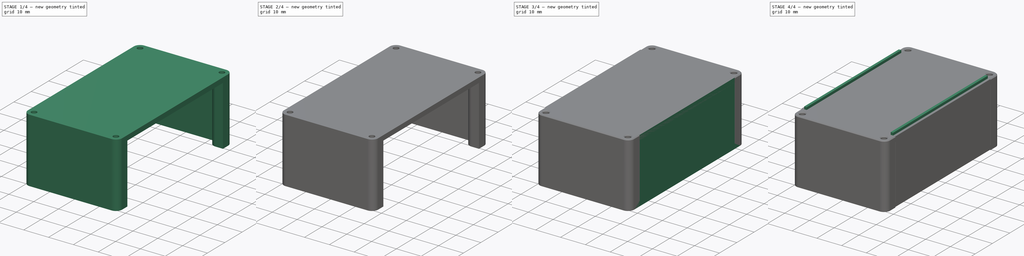
[diagram: build sequence overview — one tinted view per stage of 4, left to right]
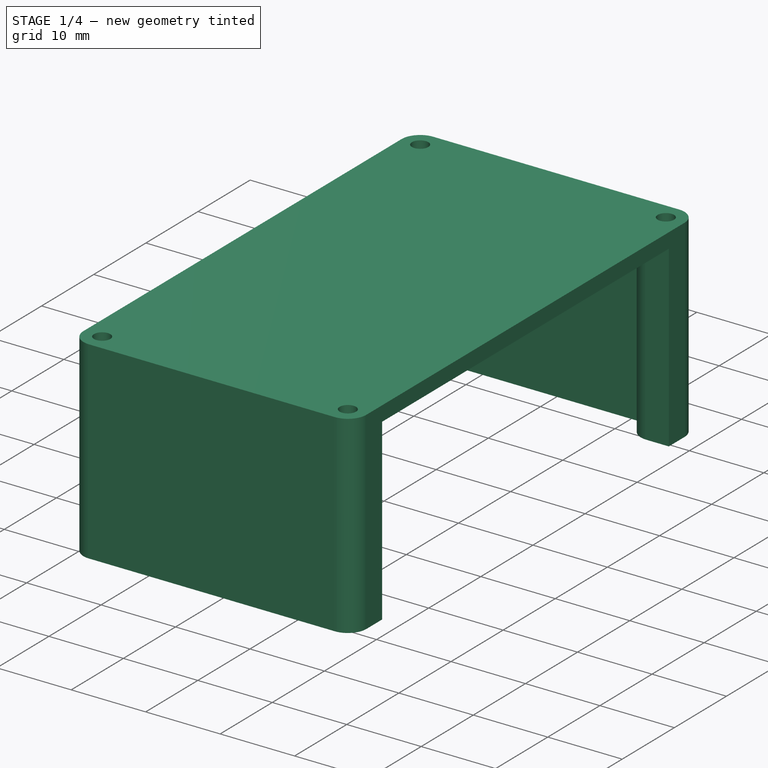
[diagram: stage 1 of 4 — iso view after this stage's code; geometry added in this stage tinted green]
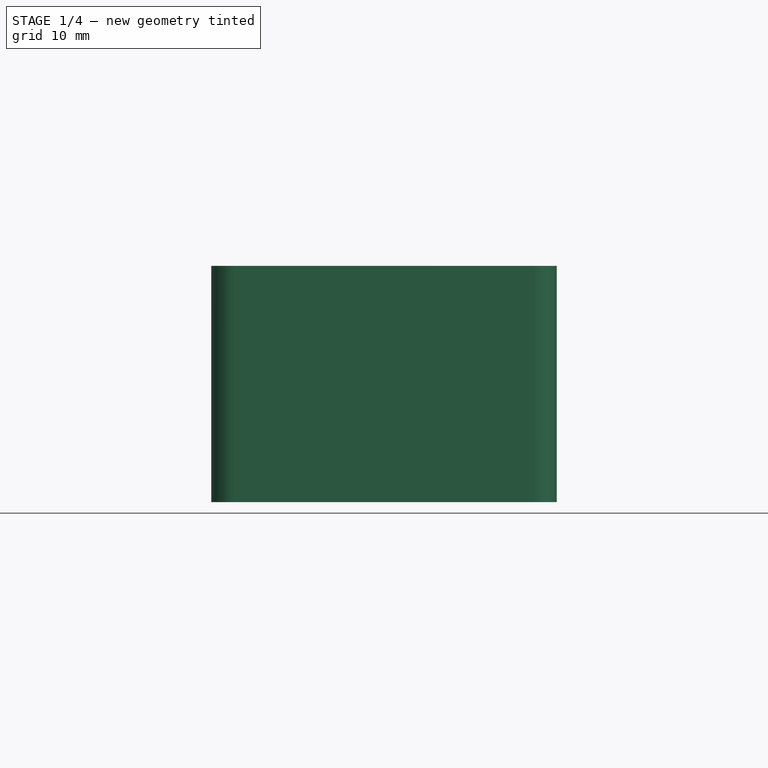
[diagram: stage 1 of 4 — front view after this stage's code; geometry added in this stage tinted green]
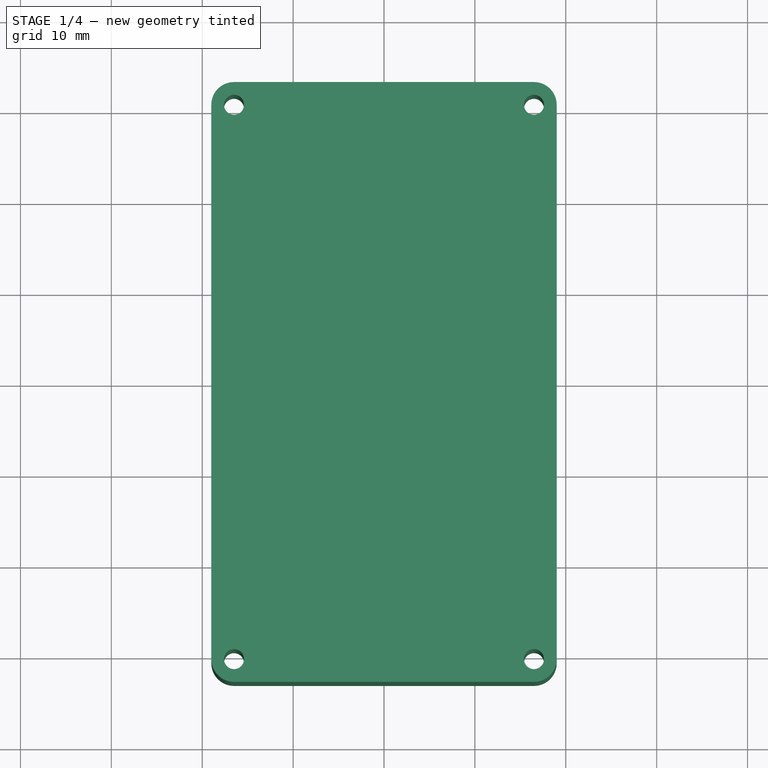
[diagram: stage 1 of 4 — top view after this stage's code; geometry added in this stage tinted green]
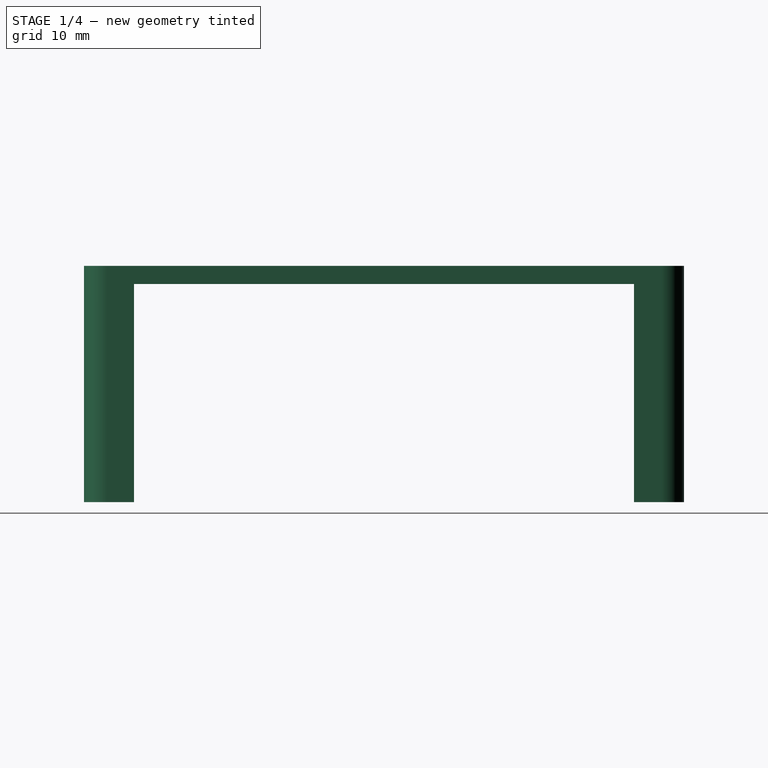
[diagram: stage 1 of 4 — right view after this stage's code; geometry added in this stage tinted green]
FCSTD DOCUMENT  (FreeCAD 0.21R33771 (Git))
Label: ADVtypeA_paramEnclosure
License: Public Domain
LicenseURL: https://en.wikipedia.org/wiki/Public_domain
objects: Sketcher::SketchObject×7, PartDesign::Pad×4, PartDesign::Pocket×3, PartDesign::Chamfer×2, PartDesign::Body×2, Spreadsheet::Sheet×1, PartDesign::Fillet×1
note: 29 computed .brp shape members not serialized (recipe doc carries the construction recipe); baked Part::Feature solids carry a one-line shape summary decoded from their .brp

FEATURE [Sketcher::SketchObject] Sketch
  FullyConstrained = true
  MapMode = 5
  Support = -> [XY_Plane010]
  expr: Constraints[24] = Spreadsheet.width
  expr: Constraints[25] = Spreadsheet.length
  sketch-geometry (12):
    g0: LineSegment StartX=-19 StartY=30.5 StartZ=0 EndX=-19 EndY=-30.5 EndZ=0
    g1: LineSegment StartX=-16.5 StartY=33 StartZ=0 EndX=16.5 EndY=33 EndZ=0
    g2: LineSegment StartX=19 StartY=30.5 StartZ=0 EndX=19 EndY=-30.5 EndZ=0
    g3: LineSegment StartX=-16.5 StartY=-33 StartZ=0 EndX=16.5 EndY=-33 EndZ=0
    g4: ArcOfCircle CenterX=16.5 CenterY=-30.5 CenterZ=0 NormalX=0 NormalY=0 NormalZ=1 AngleXU=0 Radius=2.5 StartAngle=4.71239 EndAngle=6.28319
    g5: ArcOfCircle CenterX=-16.5 CenterY=-30.5 CenterZ=0 NormalX=0 NormalY=0 NormalZ=1 AngleXU=0 Radius=2.5 StartAngle=3.14159 EndAngle=4.71239
    g6: ArcOfCircle CenterX=-16.5 CenterY=30.5 CenterZ=0 NormalX=0 NormalY=0 NormalZ=1 AngleXU=0 Radius=2.5 StartAngle=1.5708 EndAngle=3.14159
    g7: ArcOfCircle CenterX=16.5 CenterY=30.5 CenterZ=0 NormalX=0 NormalY=0 NormalZ=1 AngleXU=0 Radius=2.5 StartAngle=3e-16 EndAngle=1.5708
    g8: Circle CenterX=-16.5 CenterY=30.5 CenterZ=0 NormalX=0 NormalY=0 NormalZ=1 AngleXU=0 Radius=1.1
    g9: Circle CenterX=16.5 CenterY=-30.5 CenterZ=0 NormalX=0 NormalY=0 NormalZ=1 AngleXU=0 Radius=1.1
    g10: Circle CenterX=-16.5 CenterY=-30.5 CenterZ=0 NormalX=0 NormalY=0 NormalZ=1 AngleXU=0 Radius=1.1
    g11: Circle CenterX=16.5 CenterY=30.5 CenterZ=0 NormalX=0 NormalY=0 NormalZ=1 AngleXU=0 Radius=1.1
  constraints (26):
    c: Vertical(g0)
    c: Horizontal(g1)
    c: Vertical(g2)
    c: Horizontal(g3)
    c: Tangent(g7,g2) = 1.5708
    c: Tangent(g7,g1) = 1.5708
    c: Tangent(g6,g1) = 1.5708
    c: Tangent(g6,g0) = -1.5708
    c: Tangent(g5,g0) = -1.5708
    c: Tangent(g5,g3) = -1.5708
    c: Tangent(g4,g3) = -1.5708
    c: Tangent(g4,g2) = 1.5708
    c: Radius(g7) = 2.5
    c: Radius(g6) = 2.5
    c: Radius(g9) = 1.1
    c: Radius(g8) = 1.1
    c: Radius(g10) = 1.1
    c: Coincident(g8,g6)
    c: Coincident(g11,g7)
    c: Radius(g11) = 1.1
    c: Coincident(g9,g4)
    c: Coincident(g10,g5)
    c: Symmetric(g5,g4,g-2)
    c: Symmetric(g7,g4,g-1)
    c: DistanceX(g0,g2) = 38
    c: DistanceY(g3,g1) = 66
FEATURE [PartDesign::Pad] Pad
  Direction = (0,0,1)
  Length = 26
  Length2 = 10
  Profile = -> Sketch
  ReferenceAxis = -> Sketch [N_Axis]
  Type = 0
  expr: Length = Spreadsheet.height
FEATURE [Sketcher::SketchObject] Sketch004
  FullyConstrained = true
  MapMode = 5
  Placement = pos=(0,0,26) rot=(0,0,1;0rad)
  Support = -> [Pad002]
  expr: Constraints[22] = Spreadsheet.width
  expr: Constraints[26] = Spreadsheet.innerwidth
  expr: Constraints[30] = Spreadsheet.length
  expr: Constraints[31] = Spreadsheet.innerwall
  sketch-geometry (12):
    g0: LineSegment StartX=-19 StartY=33 StartZ=0 EndX=19 EndY=33 EndZ=0
    g1: LineSegment StartX=-19 StartY=33 StartZ=0 EndX=-19 EndY=27.35 EndZ=0
    g2: LineSegment StartX=19 StartY=33 StartZ=0 EndX=19 EndY=27.35 EndZ=0
    g3: LineSegment StartX=-19 StartY=27.35 StartZ=0 EndX=-17 EndY=27.35 EndZ=0
    g4: LineSegment StartX=19 StartY=27.35 StartZ=0 EndX=17 EndY=27.35 EndZ=0
    g5: LineSegment StartX=-17 StartY=27.35 StartZ=0 EndX=-17 EndY=-27.35 EndZ=0
    g6: LineSegment StartX=-17 StartY=-27.35 StartZ=0 EndX=-19 EndY=-27.35 EndZ=0
    g7: LineSegment StartX=-19 StartY=-27.35 StartZ=0 EndX=-19 EndY=-33 EndZ=0
    g8: LineSegment StartX=-19 StartY=-33 StartZ=0 EndX=19 EndY=-33 EndZ=0
    g9: LineSegment StartX=19 StartY=-33 StartZ=0 EndX=19 EndY=-27.35 EndZ=0
    g10: LineSegment StartX=19 StartY=-27.35 StartZ=0 EndX=17 EndY=-27.35 EndZ=0
    g11: LineSegment StartX=17 StartY=-27.35 StartZ=0 EndX=17 EndY=27.35 EndZ=0
  constraints (32):
    c: Coincident(g1,g0)
    c: Vertical(g1)
    c: Coincident(g2,g0)
    c: Vertical(g2)
    c: Coincident(g3,g1)
    c: Horizontal(g3)
    c: Coincident(g4,g2)
    c: Horizontal(g4)
    c: Coincident(g5,g3)
    c: Vertical(g5)
    c: Coincident(g6,g5)
    c: Horizontal(g6)
    c: Coincident(g7,g6)
    c: Vertical(g7)
    c: Coincident(g8,g7)
    c: Horizontal(g8)
    c: Coincident(g9,g8)
    c: Vertical(g9)
    c: Coincident(g10,g9)
    c: Horizontal(g10)
    c: Coincident(g11,g10)
    c: Coincident(g11,g4)
    c: DistanceX(g0,g0) = 38
    c: Symmetric(g0,g0,g-2)
    c: Symmetric(g0,g8,g-1)
    c: Symmetric(g3,g4,g-2)
    c: DistanceX(g3,g4) = 34
    c: Equal(g5,g11)
    c: Symmetric(g4,g10,g-1)
    c: Equal(g8,g0)
    c: DistanceY(g8,g0) = 66
    c: DistanceY(g10,g4) = 54.7
FEATURE [Spreadsheet::Sheet] Spreadsheet
  cells = A2='length (min 30); B2=66; C2(length)==B2 < 30 ? 30 : B2; D2(innerlength)==length - thickness * 2; E2(walls)==length - 11; F2(innerwall)==length - 11.3; G2(pcbsupplen)==length - 18; A3='width (min 30); B3=38; C3(width)==B3 < 30 ? 30 : B3; D3(innerwidth)==width - thickness * 2; G3(pcbsuppwid)==C3 - 12; A4='height (min 16); B4=26; C4(height)==B4 < 16 ? 16 : B4; D4(innerheight)==height - thickness; E4(hpos)==-thickness - 0.2; A5='thickness (min 1.8 max 4); B5=2; C5(thickness)==B5 < 1.8 ? 1.8 : (B5 > 4 ? 4 : B5); D5(clipthick)==thickness / 2; E5(innerclip)==width - thickness * 2 - 0.3; F5(channelthick)==thickness / 2 + 0.15
FEATURE [PartDesign::Pocket] Pocket
  BaseFeature = -> Pad
  Direction = (0,0,-1)
  Length = 24
  Length2 = 5
  Profile = -> Sketch001
  ReferenceAxis = -> Sketch001 [N_Axis]
  Reversed = true
  Type = 0
  expr: Length = Spreadsheet.innerheight
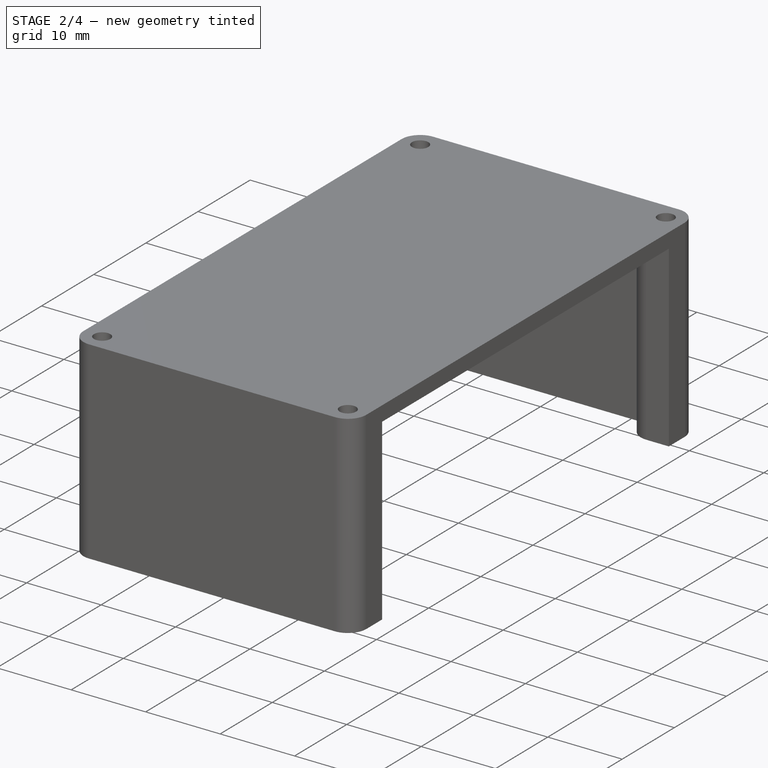
[diagram: stage 2 of 4 — iso view after this stage's code; geometry added in this stage tinted green]
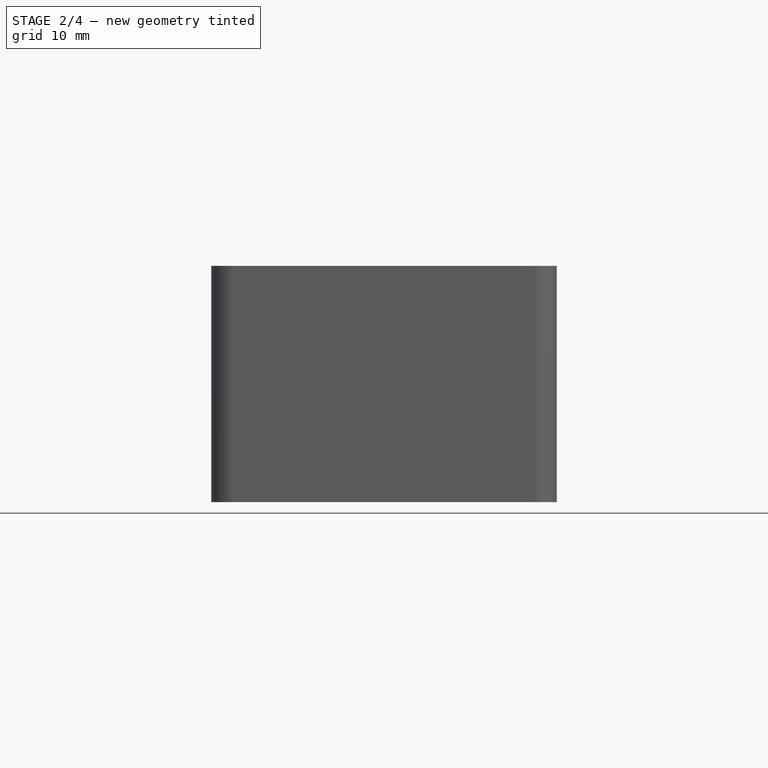
[diagram: stage 2 of 4 — front view after this stage's code; geometry added in this stage tinted green]
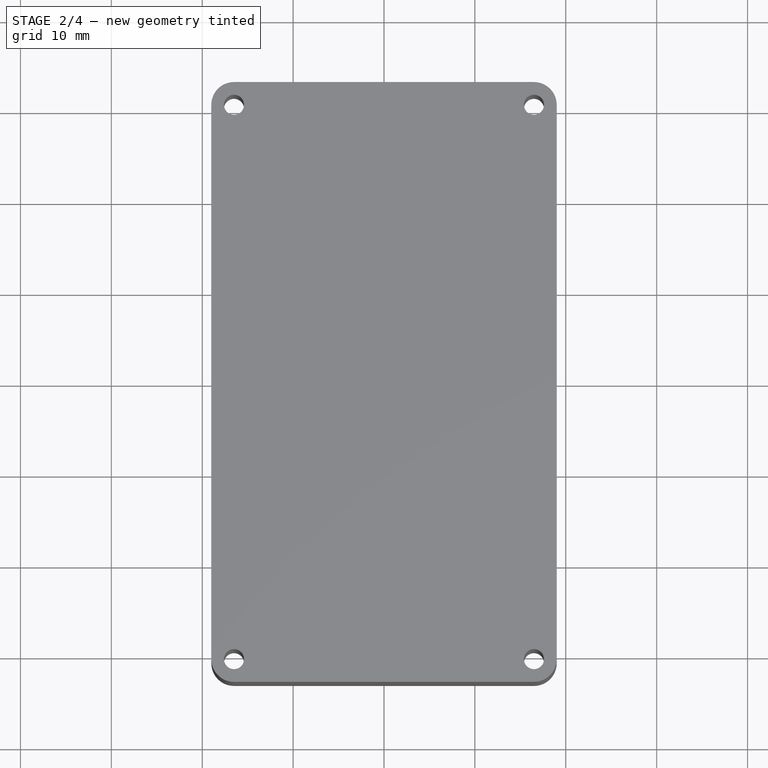
[diagram: stage 2 of 4 — top view after this stage's code; geometry added in this stage tinted green]
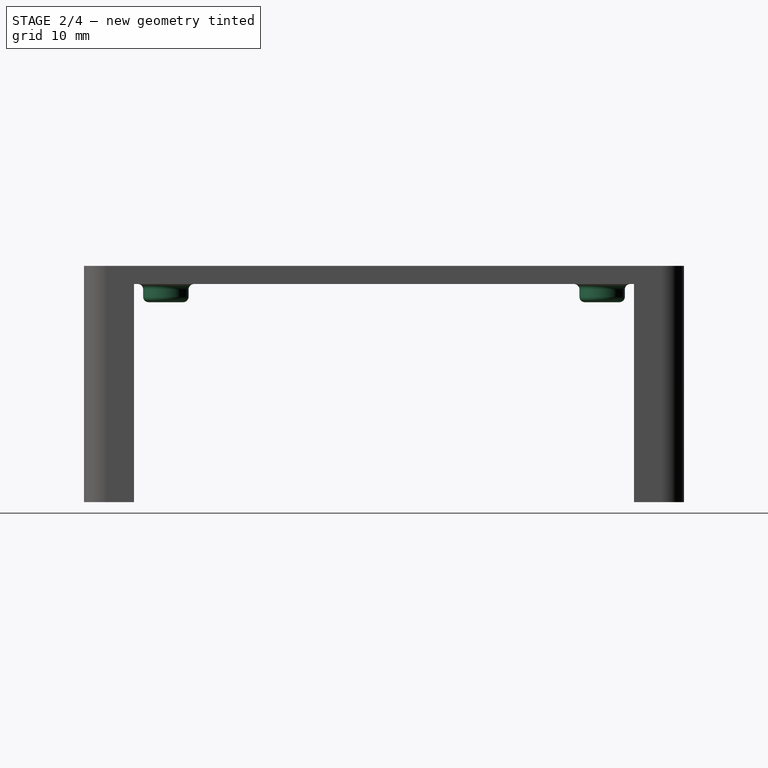
[diagram: stage 2 of 4 — right view after this stage's code; geometry added in this stage tinted green]
FEATURE [Sketcher::SketchObject] Sketch005
  FullyConstrained = true
  MapMode = 5
  Placement = pos=(0,0,24) rot=(1,0,0;3.14159rad)
  Support = -> [Pocket]
  expr: Constraints[18] = Spreadsheet.walls
  expr: Constraints[19] = Spreadsheet.innerclip
  expr: Constraints[20] = Spreadsheet.channelthick
  sketch-geometry (8):
    g0: LineSegment StartX=-18 StartY=27.5 StartZ=0 EndX=-16.85 EndY=27.5 EndZ=0
    g1: LineSegment StartX=-16.85 StartY=27.5 StartZ=0 EndX=-16.85 EndY=-27.5 EndZ=0
    g2: LineSegment StartX=-16.85 StartY=-27.5 StartZ=0 EndX=-18 EndY=-27.5 EndZ=0
    g3: LineSegment StartX=-18 StartY=-27.5 StartZ=0 EndX=-18 EndY=27.5 EndZ=0
    g4: LineSegment StartX=16.85 StartY=27.5 StartZ=0 EndX=18 EndY=27.5 EndZ=0
    g5: LineSegment StartX=18 StartY=27.5 StartZ=0 EndX=18 EndY=-27.5 EndZ=0
    g6: LineSegment StartX=18 StartY=-27.5 StartZ=0 EndX=16.85 EndY=-27.5 EndZ=0
    g7: LineSegment StartX=16.85 StartY=-27.5 StartZ=0 EndX=16.85 EndY=27.5 EndZ=0
  constraints (21):
    c: Coincident(g0,g1)
    c: Coincident(g1,g2)
    c: Coincident(g2,g3)
    c: Coincident(g3,g0)
    c: Horizontal(g0)
    c: Horizontal(g2)
    c: Vertical(g3)
    c: Coincident(g4,g5)
    c: Coincident(g5,g6)
    c: Coincident(g6,g7)
    c: Coincident(g7,g4)
    c: Horizontal(g4)
    c: Horizontal(g6)
    c: Vertical(g5)
    c: Equal(g2,g6)
    c: Symmetric(g4,g6,g-1)
    c: Symmetric(g0,g1,g-1)
    c: Symmetric(g0,g4,g-2)
    c: DistanceY(g1,g1) = 55
    c: DistanceX(g0,g4) = 33.7
    c: DistanceX(g6,g5) = 1.15
FEATURE [PartDesign::Pocket] Pocket002
  BaseFeature = -> Pocket
  Direction = (0,0,1)
  Length = 1
  Length2 = 5
  Profile = -> Sketch005
  ReferenceAxis = -> Sketch005 [N_Axis]
  Type = 0
  expr: Length = Spreadsheet.clipthick
FEATURE [Sketcher::SketchObject] Sketch007
  FullyConstrained = true
  MapMode = 5
  Placement = pos=(0,0,24) rot=(1,0,0;3.14159rad)
  Support = -> [Pocket002]
  expr: Constraints[15] = Spreadsheet.pcbsupplen
  expr: Constraints[16] = Spreadsheet.pcbsuppwid
  sketch-geometry (8):
    g0: Circle CenterX=-13 CenterY=24 CenterZ=0 NormalX=0 NormalY=0 NormalZ=1 AngleXU=0 Radius=2.5
    g1: Circle CenterX=-13 CenterY=24 CenterZ=0 NormalX=0 NormalY=0 NormalZ=1 AngleXU=0 Radius=1
    g2: Circle CenterX=13 CenterY=24 CenterZ=0 NormalX=0 NormalY=0 NormalZ=1 AngleXU=0 Radius=2.5
    g3: Circle CenterX=-13 CenterY=-24 CenterZ=0 NormalX=0 NormalY=0 NormalZ=1 AngleXU=0 Radius=2.5
    g4: Circle CenterX=13 CenterY=-24 CenterZ=0 NormalX=0 NormalY=0 NormalZ=1 AngleXU=0 Radius=2.5
    g5: Circle CenterX=13 CenterY=24 CenterZ=0 NormalX=0 NormalY=0 NormalZ=1 AngleXU=0 Radius=1
    g6: Circle CenterX=-13 CenterY=-24 CenterZ=0 NormalX=0 NormalY=0 NormalZ=1 AngleXU=0 Radius=1
    g7: Circle CenterX=13 CenterY=-24 CenterZ=0 NormalX=0 NormalY=0 NormalZ=1 AngleXU=0 Radius=1
  constraints (17):
    c: Coincident(g1,g0)
    c: Equal(g0,g2)
    c: Equal(g2,g3)
    c: Equal(g3,g4)
    c: Diameter(g0) = 5
    c: Coincident(g5,g2)
    c: Coincident(g6,g3)
    c: Coincident(g7,g4)
    c: Equal(g1,g5)
    c: Equal(g5,g6)
    c: Equal(g6,g7)
    c: Diameter(g1) = 2
    c: Symmetric(g0,g2,g-2)
    c: Symmetric(g3,g4,g-2)
    c: Symmetric(g0,g3,g-1)
    c: DistanceY(g4,g2) = 48
    c: DistanceX(g0,g2) = 26
FEATURE [PartDesign::Pad] Pad004
  BaseFeature = -> Pocket002
  Direction = (0,0,-1)
  Length = 2
  Length2 = 10
  Profile = -> Sketch007
  ReferenceAxis = -> Sketch007 [N_Axis]
  Type = 0
  expr: Length = 2 mm
FEATURE [PartDesign::Body] Body001  label="Top"
  Group = -> [Sketch003,Pad002,Sketch004,Pocket001,Sketch006,Pad003,Chamfer001]
  Origin = -> Origin020
  Placement = pos=(0,0,-2.2) rot=(0,0,1;0rad)
  Tip = -> Chamfer001
  expr: .Placement.Base.z = Spreadsheet.hpos
FEATURE [PartDesign::Fillet] Fillet
  Base = -> Pad004 [Face40,Face42,Face41,Face39]
  BaseFeature = -> Pad004
  Radius = 0.6
  SupportTransform = false
  UseAllEdges = false
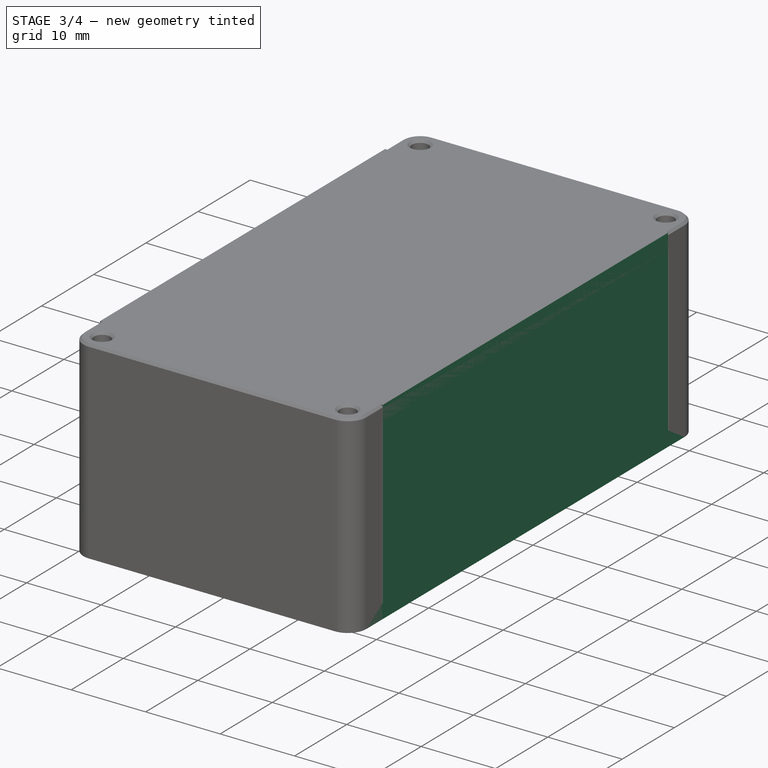
[diagram: stage 3 of 4 — iso view after this stage's code; geometry added in this stage tinted green]
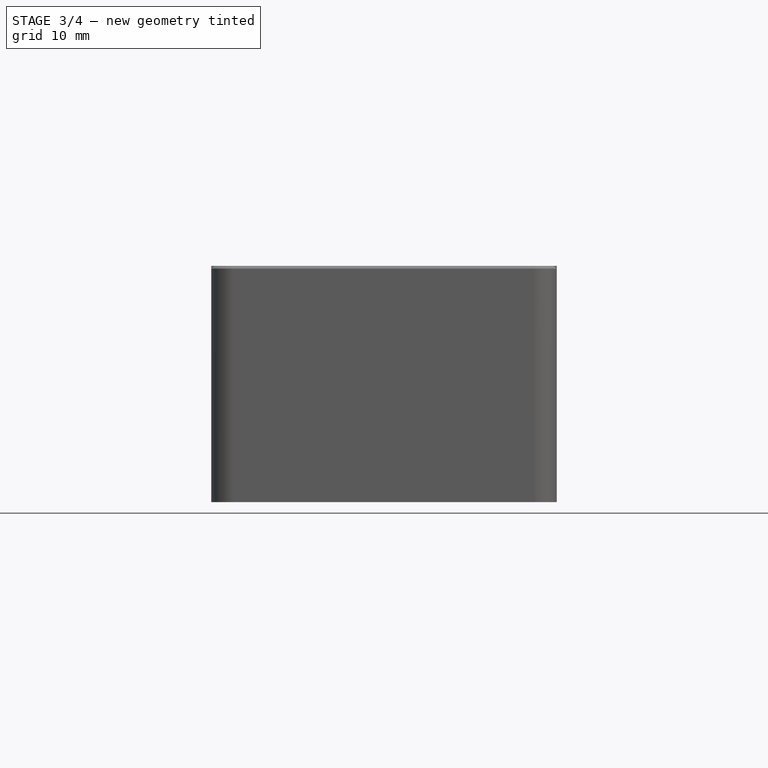
[diagram: stage 3 of 4 — front view after this stage's code; geometry added in this stage tinted green]
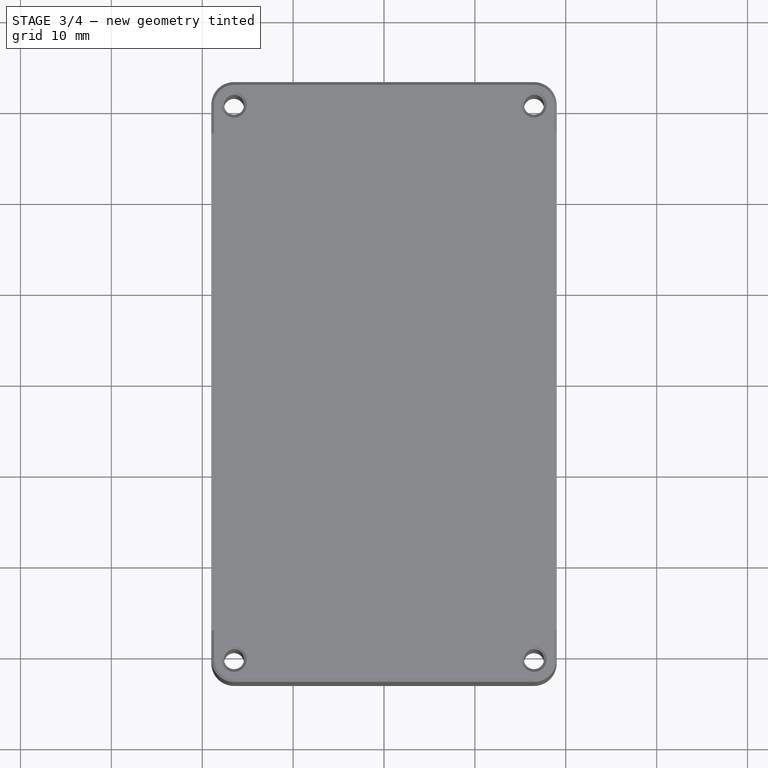
[diagram: stage 3 of 4 — top view after this stage's code; geometry added in this stage tinted green]
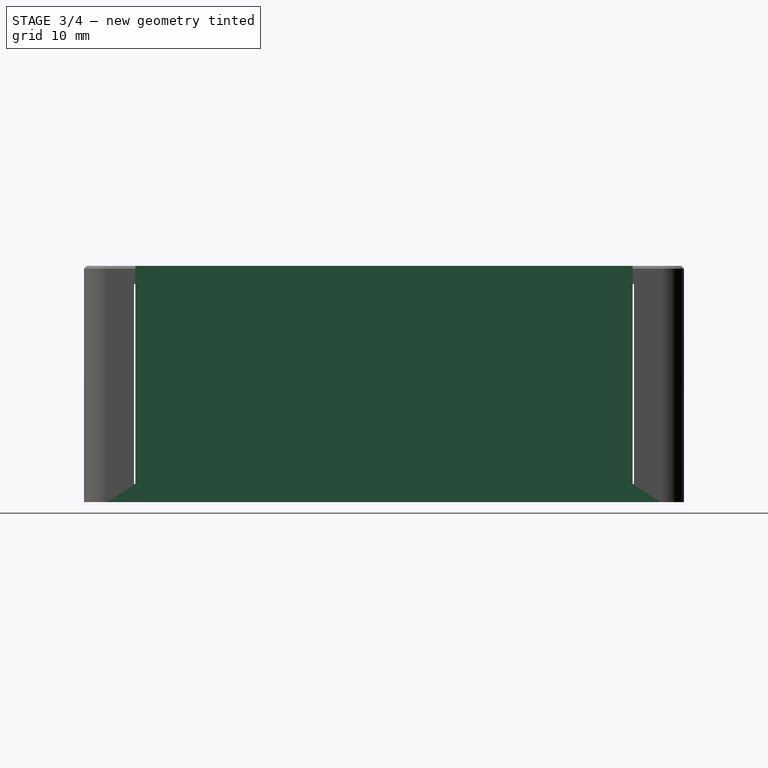
[diagram: stage 3 of 4 — right view after this stage's code; geometry added in this stage tinted green]
FEATURE [Sketcher::SketchObject] Sketch001
  FullyConstrained = true
  MapMode = 5
  expr: Constraints[42] = Spreadsheet.width
  expr: Constraints[43] = Spreadsheet.innerlength
  sketch-geometry (16):
    g0: ArcOfCircle CenterX=-16 CenterY=-30 CenterZ=0 NormalX=0 NormalY=0 NormalZ=1 AngleXU=0 Radius=2.5 StartAngle=-9e-16 EndAngle=1.5708
    g1: ArcOfCircle CenterX=-16 CenterY=30 CenterZ=0 NormalX=0 NormalY=0 NormalZ=1 AngleXU=0 Radius=2.5 StartAngle=4.71239 EndAngle=6.28319
    g2: LineSegment StartX=-16 StartY=27.5 StartZ=0 EndX=-19 EndY=27.5 EndZ=0
    g3: LineSegment StartX=-19 StartY=27.5 StartZ=0 EndX=-19 EndY=-27.5 EndZ=0
    g4: LineSegment StartX=-19 StartY=-27.5 StartZ=0 EndX=-16 EndY=-27.5 EndZ=0
    g5: LineSegment StartX=19 StartY=-27.5 StartZ=0 EndX=19 EndY=27.5 EndZ=0
    g6: LineSegment StartX=16 StartY=27.5 StartZ=0 EndX=19 EndY=27.5 EndZ=0
    g7: ArcOfCircle CenterX=16 CenterY=30 CenterZ=0 NormalX=0 NormalY=0 NormalZ=1 AngleXU=0 Radius=2.5 StartAngle=3.14159 EndAngle=4.71239
    g8: ArcOfCircle CenterX=16 CenterY=-30 CenterZ=0 NormalX=0 NormalY=0 NormalZ=1 AngleXU=0 Radius=2.5 StartAngle=1.5708 EndAngle=3.14159
    g9: LineSegment StartX=19 StartY=-27.5 StartZ=0 EndX=16 EndY=-27.5 EndZ=0
    g10: LineSegment StartX=-13.5 StartY=-31 StartZ=0 EndX=13.5 EndY=-31 EndZ=0
    g11: LineSegment StartX=13.5 StartY=-30 StartZ=0 EndX=13.5 EndY=-31 EndZ=0
    g12: LineSegment StartX=-13.5 StartY=30 StartZ=0 EndX=-13.5 EndY=31 EndZ=0
    g13: LineSegment StartX=-13.5 StartY=31 StartZ=0 EndX=13.5 EndY=31 EndZ=0
    g14: LineSegment StartX=13.5 StartY=30 StartZ=0 EndX=13.5 EndY=31 EndZ=0
    g15: LineSegment StartX=-13.5 StartY=-31 StartZ=0 EndX=-13.5 EndY=-30 EndZ=0
  constraints (44):
    c: Radius(g0) = 2.5
    c: Angle(g1) = 1.5708
    c: Coincident(g2,g1)
    c: Horizontal(g2)
    c: Coincident(g3,g2)
    c: Vertical(g3)
    c: Horizontal(g4)
    c: Vertical(g5)
    c: Coincident(g6,g5)
    c: Horizontal(g6)
    c: Equal(g2,g4)
    c: DistanceX(g4,g4) = 3
    c: Tangent(g4,g0) = 1.5708
    c: Coincident(g4,g3)
    c: Equal(g3,g5)
    c: Coincident(g7,g6)
    c: Angle(g7) = 1.5708
    c: Coincident(g9,g5)
    c: Tangent(g9,g8) = -1.5708
    c: Horizontal(g9)
    c: Equal(g9,g6)
    c: Equal(g6,g2)
    c: Equal(g8,g0)
    c: Equal(g0,g1)
    c: Horizontal(g10)
    c: Coincident(g11,g10)
    c: Vertical(g11)
    c: Vertical(g12)
    c: Coincident(g13,g12)
    c: Horizontal(g13)
    c: Coincident(g14,g13)
    c: Vertical(g14)
    c: Tangent(g12,g1) = -1.5708
    c: Tangent(g14,g7) = 1.5708
    c: Coincident(g15,g10)
    c: Vertical(g15)
    c: Equal(g11,g12)
    c: DistanceY(g11,g11) = 1
    c: Tangent(g11,g8) = -1.5708
    c: Tangent(g15,g0) = -1.5708
    c: Symmetric(g2,g5,g-2)
    c: Symmetric(g13,g10,g-1)
    c: DistanceX(g2,g5) = 38
    c: DistanceY(g10,g13) = 62
FEATURE [Sketcher::SketchObject] Sketch003
  FullyConstrained = true
  MapMode = 5
  Support = -> [XY_Plane020]
  expr: Constraints[24] = Spreadsheet.width
  expr: Constraints[25] = Spreadsheet.length
  sketch-geometry (12):
    g0: LineSegment StartX=-19 StartY=30.5 StartZ=0 EndX=-19 EndY=-30.5 EndZ=0
    g1: LineSegment StartX=-16.5 StartY=-33 StartZ=0 EndX=16.5 EndY=-33 EndZ=0
    g2: LineSegment StartX=19 StartY=-30.5 StartZ=0 EndX=19 EndY=30.5 EndZ=0
    g3: LineSegment StartX=-16.5 StartY=33 StartZ=0 EndX=16.5 EndY=33 EndZ=0
    g4: ArcOfCircle CenterX=16.5 CenterY=30.5 CenterZ=0 NormalX=0 NormalY=0 NormalZ=1 AngleXU=0 Radius=2.5 StartAngle=7e-16 EndAngle=1.5708
    g5: ArcOfCircle CenterX=-16.5 CenterY=30.5 CenterZ=0 NormalX=0 NormalY=0 NormalZ=1 AngleXU=0 Radius=2.5 StartAngle=1.5708 EndAngle=3.14159
    g6: ArcOfCircle CenterX=-16.5 CenterY=-30.5 CenterZ=0 NormalX=0 NormalY=0 NormalZ=1 AngleXU=0 Radius=2.5 StartAngle=3.14159 EndAngle=4.71239
    g7: ArcOfCircle CenterX=16.5 CenterY=-30.5 CenterZ=0 NormalX=0 NormalY=0 NormalZ=1 AngleXU=0 Radius=2.5 StartAngle=4.71239 EndAngle=6.28319
    g8: Circle CenterX=-16.5 CenterY=30.5 CenterZ=0 NormalX=0 NormalY=0 NormalZ=1 AngleXU=0 Radius=1.1
    g9: Circle CenterX=16.5 CenterY=30.5 CenterZ=0 NormalX=0 NormalY=0 NormalZ=1 AngleXU=0 Radius=1.1
    g10: Circle CenterX=16.5 CenterY=-30.5 CenterZ=0 NormalX=0 NormalY=0 NormalZ=1 AngleXU=0 Radius=1.1
    g11: Circle CenterX=-16.5 CenterY=-30.5 CenterZ=0 NormalX=0 NormalY=0 NormalZ=1 AngleXU=0 Radius=1.1
  constraints (26):
    c: Vertical(g0)
    c: Horizontal(g1)
    c: Vertical(g2)
    c: Horizontal(g3)
    c: Tangent(g7,g2) = -1.5708
    c: Tangent(g7,g1) = -1.5708
    c: Tangent(g4,g2) = -1.5708
    c: Tangent(g4,g3) = 1.5708
    c: Tangent(g5,g3) = 1.5708
    c: Tangent(g5,g0) = -1.5708
    c: Tangent(g6,g0) = -1.5708
    c: Tangent(g6,g1) = -1.5708
    c: Radius(g6) = 2.5
    c: Radius(g4) = 2.5
    c: Coincident(g8,g5)
    c: Coincident(g9,g4)
    c: Coincident(g10,g7)
    c: Coincident(g11,g6)
    c: Radius(g9) = 1.1
    c: Equal(g8,g9)
    c: Equal(g9,g11)
    c: Equal(g11,g10)
    c: Symmetric(g0,g2,g-2)
    c: Symmetric(g3,g1,g-1)
    c: DistanceX(g0,g2) = 38
    c: DistanceY(g1,g3) = 66
FEATURE [PartDesign::Pad] Pad002
  Direction = (0,0,1)
  Length = 26
  Length2 = 10
  Profile = -> Sketch003
  ReferenceAxis = -> Sketch003 [N_Axis]
  Type = 0
  expr: Length = Spreadsheet.height
FEATURE [PartDesign::Pocket] Pocket001
  BaseFeature = -> Pad002
  Direction = (0,0,-1)
  Length = 24
  Length2 = 5
  Profile = -> Sketch004
  ReferenceAxis = -> Sketch004 [N_Axis]
  Type = 0
  expr: Length = Spreadsheet.innerheight
FEATURE [PartDesign::Chamfer] Chamfer
  Angle = 45
  Base = -> Fillet [Face44]
  BaseFeature = -> Fillet
  ChamferType = 0
  FlipDirection = false
  Size = 0.3
  Size2 = 1
  SupportTransform = false
  UseAllEdges = false
FEATURE [PartDesign::Body] Body  label="Bottom"
  Group = -> [Sketch,Pad,Sketch001,Pocket,Sketch005,Pocket002,Sketch007,Pad004,Fillet,Chamfer]
  Origin = -> Origin010
  Tip = -> Chamfer
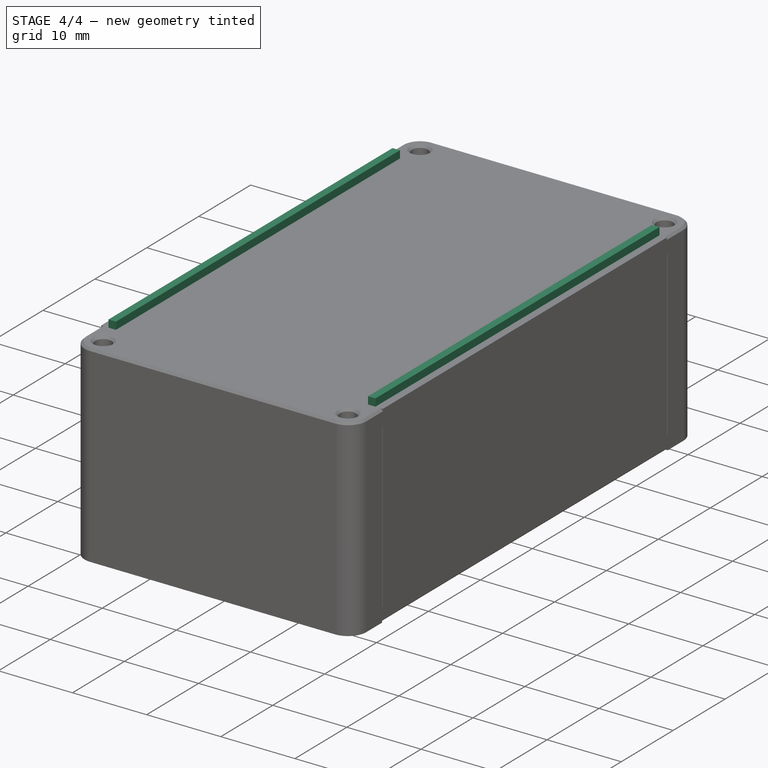
[diagram: stage 4 of 4 — iso view after this stage's code; geometry added in this stage tinted green]
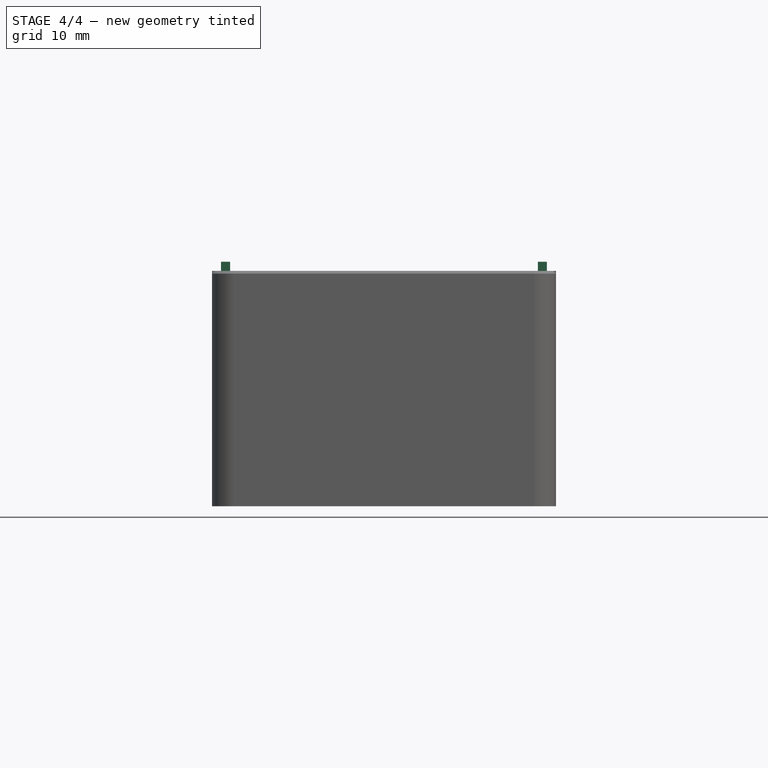
[diagram: stage 4 of 4 — front view after this stage's code; geometry added in this stage tinted green]
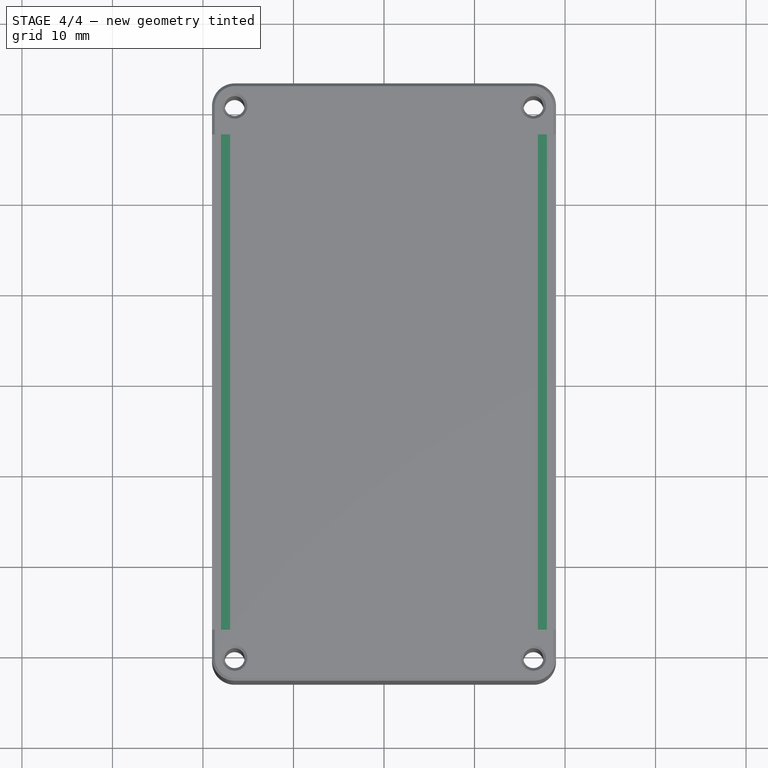
[diagram: stage 4 of 4 — top view after this stage's code; geometry added in this stage tinted green]
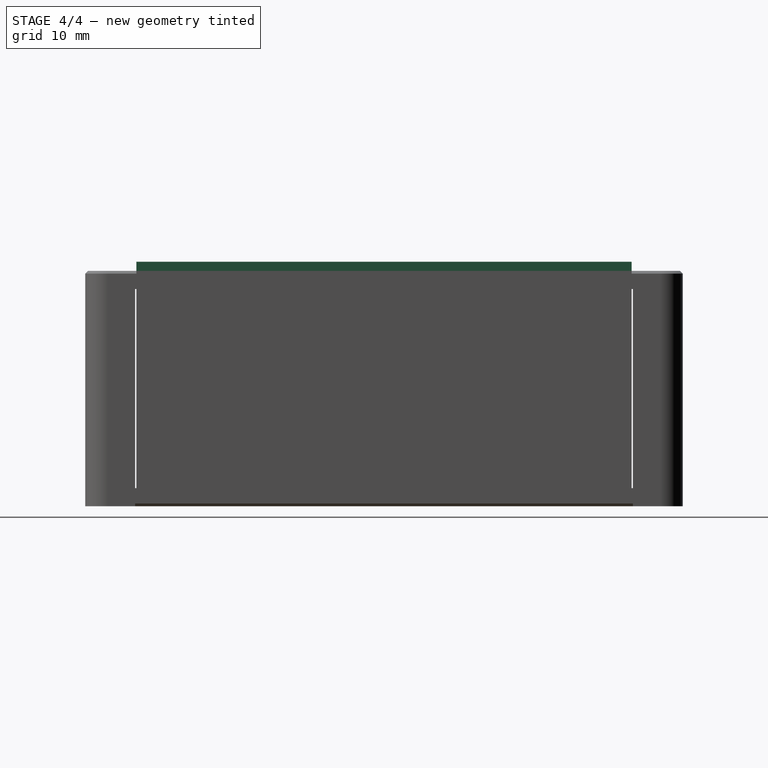
[diagram: stage 4 of 4 — right view after this stage's code; geometry added in this stage tinted green]
FEATURE [Sketcher::SketchObject] Sketch006
  FullyConstrained = true
  MapMode = 5
  Placement = pos=(0,0,26) rot=(0,0,1;0rad)
  Support = -> [Pocket001]
  expr: Constraints[19] = Spreadsheet.innerwidth
  expr: Constraints[20] = Spreadsheet.innerwall
  expr: Constraints[21] = Spreadsheet.clipthick
  sketch-geometry (8):
    g0: LineSegment StartX=-18 StartY=27.35 StartZ=0 EndX=-17 EndY=27.35 EndZ=0
    g1: LineSegment StartX=-17 StartY=27.35 StartZ=0 EndX=-17 EndY=-27.35 EndZ=0
    g2: LineSegment StartX=-17 StartY=-27.35 StartZ=0 EndX=-18 EndY=-27.35 EndZ=0
    g3: LineSegment StartX=-18 StartY=-27.35 StartZ=0 EndX=-18 EndY=27.35 EndZ=0
    g4: LineSegment StartX=17 StartY=27.35 StartZ=0 EndX=18 EndY=27.35 EndZ=0
    g5: LineSegment StartX=18 StartY=27.35 StartZ=0 EndX=18 EndY=-27.35 EndZ=0
    g6: LineSegment StartX=18 StartY=-27.35 StartZ=0 EndX=17 EndY=-27.35 EndZ=0
    g7: LineSegment StartX=17 StartY=-27.35 StartZ=0 EndX=17 EndY=27.35 EndZ=0
  constraints (22):
    c: Coincident(g0,g1)
    c: Coincident(g1,g2)
    c: Coincident(g2,g3)
    c: Coincident(g3,g0)
    c: Horizontal(g0)
    c: Horizontal(g2)
    c: Vertical(g3)
    c: Coincident(g4,g5)
    c: Coincident(g5,g6)
    c: Coincident(g6,g7)
    c: Coincident(g7,g4)
    c: Horizontal(g4)
    c: Horizontal(g6)
    c: Vertical(g5)
    c: Vertical(g7)
    c: Equal(g1,g7)
    c: Equal(g0,g4)
    c: Symmetric(g0,g4,g-2)
    c: Symmetric(g0,g1,g-1)
    c: DistanceX(g0,g4) = 34
    c: DistanceY(g5,g4) = 54.7
    c: DistanceX(g0,g0) = 1
FEATURE [PartDesign::Pad] Pad003
  BaseFeature = -> Pocket001
  Direction = (0,0,1)
  Length = 1
  Length2 = 10
  Profile = -> Sketch006
  ReferenceAxis = -> Sketch006 [N_Axis]
  Type = 0
  expr: Length = Spreadsheet.clipthick
FEATURE [PartDesign::Chamfer] Chamfer001
  Angle = 45
  Base = -> Pad003 [Face2]
  BaseFeature = -> Pad003
  ChamferType = 0
  FlipDirection = false
  Size = 0.3
  Size2 = 1
  SupportTransform = false
  UseAllEdges = false
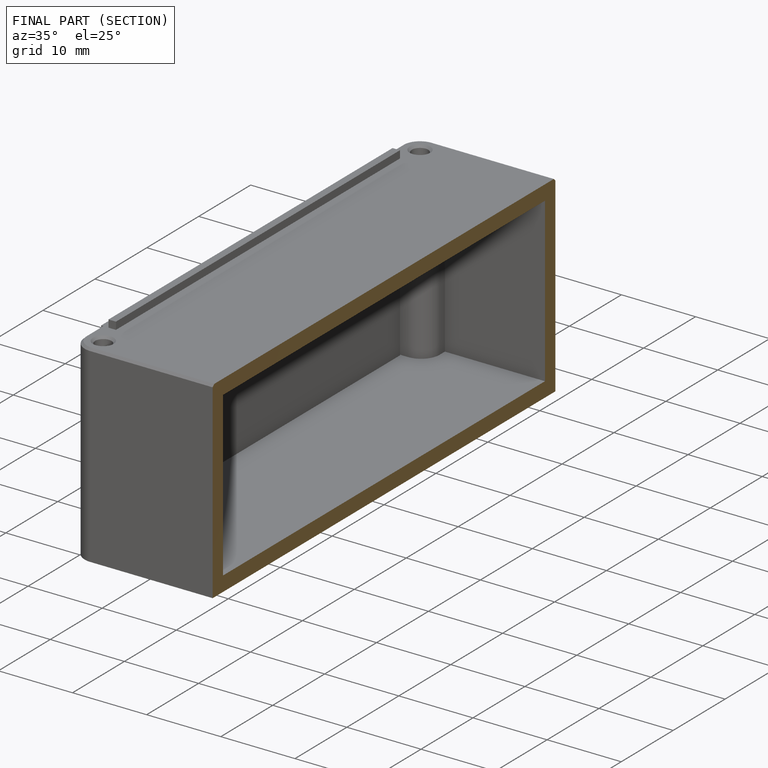
[diagram: finished part — half-section view (interior)]
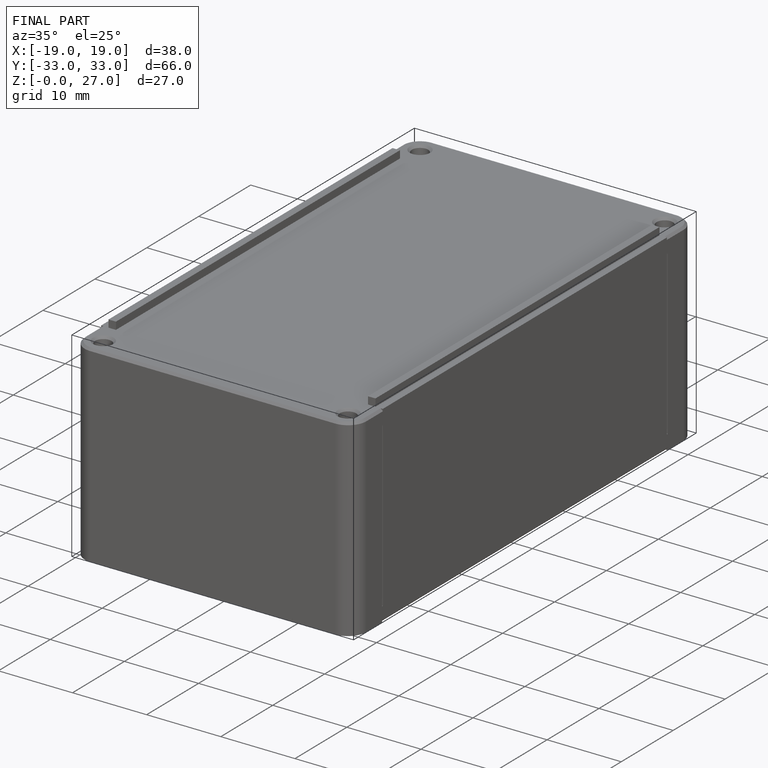
[diagram: finished part — iso view with bounding-box wireframe]
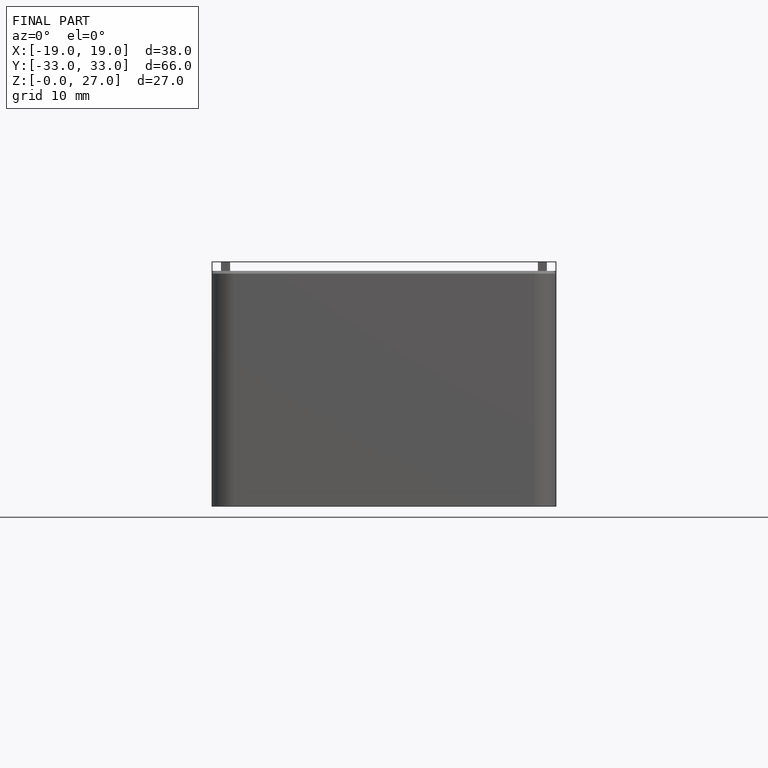
[diagram: finished part — front view with bounding-box wireframe]
